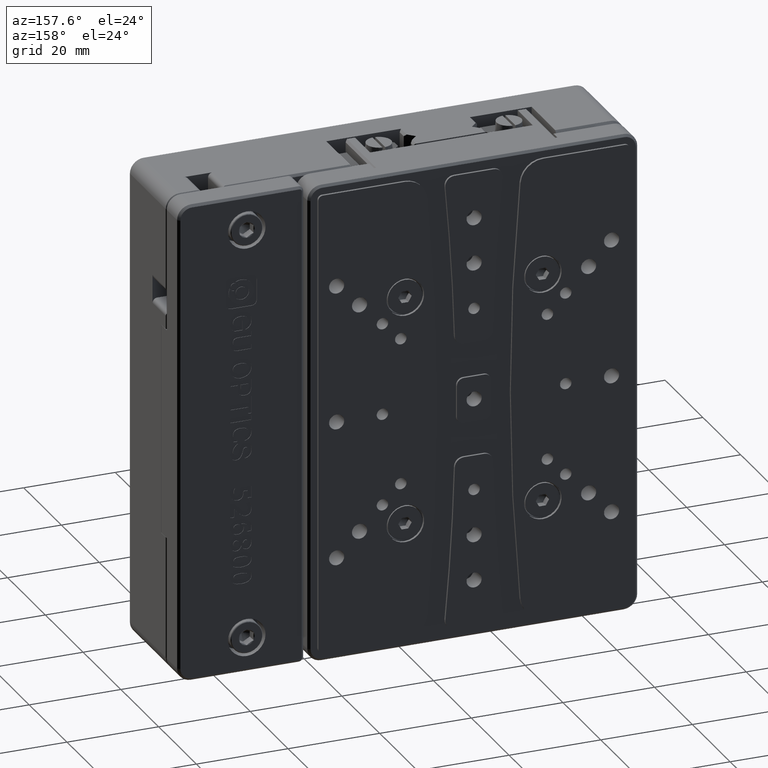
[diagram: clean part render]
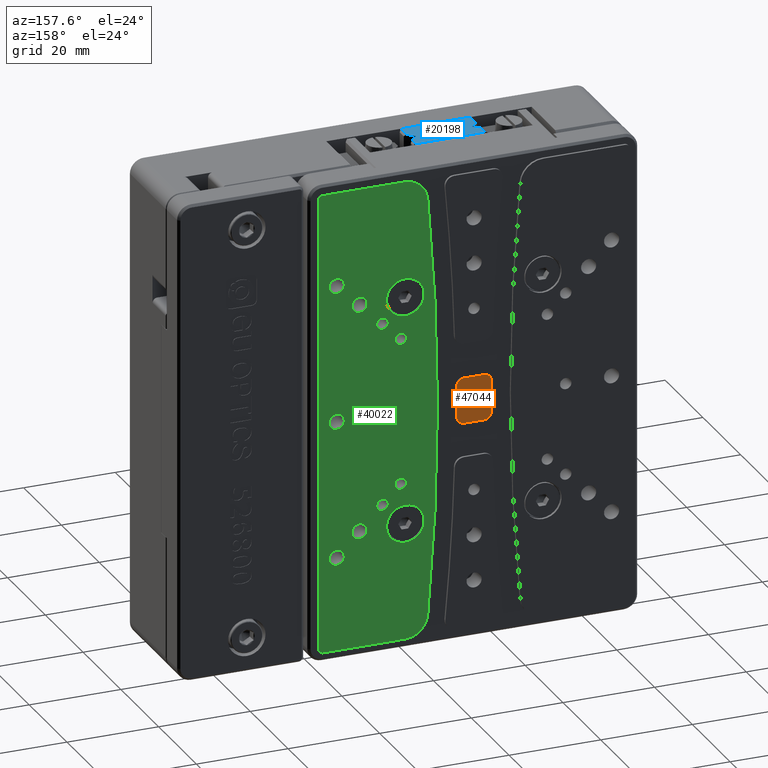
[diagram: same view with three faces highlighted in distinct colors, each labeled with its STEP entity id]
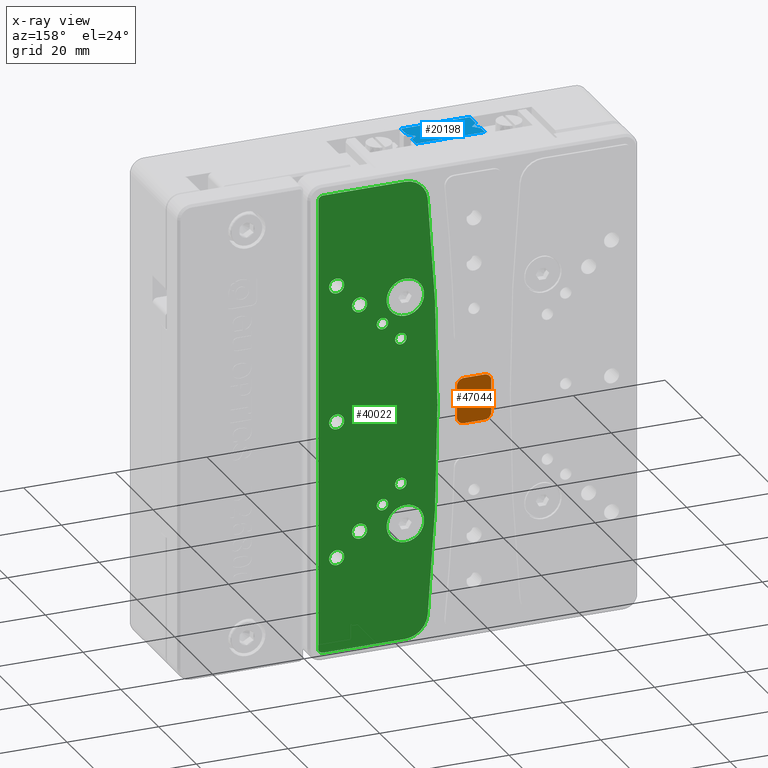
[diagram: x-ray of the same camera — body ghosted, the three highlighted faces saturated]
A machine part, auxiliary view with three faces highlighted in distinct colors.
The next image is the same camera in x-ray (body ghosted, the three faces saturated) — at least one of them is partly hidden behind the body in this view.
Their STEP definitions:

[orange] entity #47044 — the highlighted planar face has unit normal (0, 1, 0).
#831 = EDGE_LOOP ( 'NONE', ( #42785, #41450 ) ) ;
#976 = DIRECTION ( 'NONE',  ( -0.0000000000000000000, -1.000000000000000000, -0.0000000000000000000 ) ) ;
#1041 = EDGE_CURVE ( 'NONE', #34182, #41392, #43091, .T. ) ;
#1652 = CARTESIAN_POINT ( 'NONE',  ( -11.75000000000000000, 7.500000000000000000, -5.000000000000000000 ) ) ;
#2796 = VECTOR ( 'NONE', #21683, 1000.000000000000000 ) ;
#4274 = CIRCLE ( 'NONE', #44759, 1.500000000000000000 ) ;
#4364 = CARTESIAN_POINT ( 'NONE',  ( -16.25000000000000000, 7.500000000000000000, 5.000000000000000000 ) ) ;
#4932 = AXIS2_PLACEMENT_3D ( 'NONE', #23593, #976, #27373 ) ;
#5337 = ORIENTED_EDGE ( 'NONE', *, *, #18552, .T. ) ;
#6198 = CIRCLE ( 'NONE', #47684, 1.500000000000000000 ) ;
#6236 = DIRECTION ( 'NONE',  ( 0.0000000000000000000, 1.000000000000000000, 0.0000000000000000000 ) ) ;
#6574 = EDGE_CURVE ( 'NONE', #37501, #28889, #4274, .T. ) ;
#6836 = LINE ( 'NONE', #32378, #25718 ) ;
#7371 = CARTESIAN_POINT ( 'NONE',  ( -16.25000000000000000, 7.500000000000000000, -3.500000000000000000 ) ) ;
#7720 = ORIENTED_EDGE ( 'NONE', *, *, #48487, .T. ) ;
#8084 = DIRECTION ( 'NONE',  ( 0.0000000000000000000, 1.000000000000000000, 0.0000000000000000000 ) ) ;
#10986 = EDGE_CURVE ( 'NONE', #44526, #27795, #32335, .T. ) ;
#11155 = DIRECTION ( 'NONE',  ( 0.0000000000000000000, 0.0000000000000000000, 1.000000000000000000 ) ) ;
#11985 = VERTEX_POINT ( 'NONE', #4364 ) ;
#13338 = LINE ( 'NONE', #36377, #23372 ) ;
#13592 = EDGE_CURVE ( 'NONE', #42913, #39752, #42297, .T. ) ;
#13858 = DIRECTION ( 'NONE',  ( 0.0000000000000000000, 0.0000000000000000000, 1.000000000000000000 ) ) ;
#14431 = DIRECTION ( 'NONE',  ( 0.0000000000000000000, 0.0000000000000000000, 1.000000000000000000 ) ) ;
#14468 = CIRCLE ( 'NONE', #4932, 1.649999999999999900 ) ;
#14529 = EDGE_CURVE ( 'NONE', #39752, #42913, #14468, .T. ) ;
#17276 = CARTESIAN_POINT ( 'NONE',  ( -17.75000000000000000, 7.500000000000000000, -3.500000000000000000 ) ) ;
#17520 = CARTESIAN_POINT ( 'NONE',  ( -17.75000000000000000, 7.500000000000000000, 3.500000000000000000 ) ) ;
#17798 = CARTESIAN_POINT ( 'NONE',  ( -14.00000000000000000, 7.500000000000000000, 0.0000000000000000000 ) ) ;
#18552 = EDGE_CURVE ( 'NONE', #27795, #11985, #6198, .T. ) ;
#18656 = AXIS2_PLACEMENT_3D ( 'NONE', #23072, #8084, #13858 ) ;
#19771 = DIRECTION ( 'NONE',  ( 0.0000000000000000000, 1.000000000000000000, 0.0000000000000000000 ) ) ;
#21571 = DIRECTION ( 'NONE',  ( 0.0000000000000000000, 0.0000000000000000000, 1.000000000000000000 ) ) ;
#21683 = DIRECTION ( 'NONE',  ( 0.0000000000000000000, 0.0000000000000000000, -1.000000000000000000 ) ) ;
#22334 = FACE_OUTER_BOUND ( 'NONE', #43760, .T. ) ;
#23072 = CARTESIAN_POINT ( 'NONE',  ( -11.75000000000000000, 7.500000000000000000, -3.500000000000000000 ) ) ;
#23372 = VECTOR ( 'NONE', #47461, 1000.000000000000000 ) ;
#23593 = CARTESIAN_POINT ( 'NONE',  ( -14.00000000000000000, 7.500000000000000000, 0.0000000000000000000 ) ) ;
#25718 = VECTOR ( 'NONE', #32544, 1000.000000000000000 ) ;
#27373 = DIRECTION ( 'NONE',  ( 0.0000000000000000000, 0.0000000000000000000, 1.000000000000000000 ) ) ;
#27795 = VERTEX_POINT ( 'NONE', #17520 ) ;
#28812 = CARTESIAN_POINT ( 'NONE',  ( 21.35999999999999900, 7.500000000000000000, -52.51999999999999600 ) ) ;
#28889 = VERTEX_POINT ( 'NONE', #42610 ) ;
#29333 = LINE ( 'NONE', #44319, #2796 ) ;
#30814 = ORIENTED_EDGE ( 'NONE', *, *, #10986, .T. ) ;
#30895 = ORIENTED_EDGE ( 'NONE', *, *, #39242, .T. ) ;
#31211 = DIRECTION ( 'NONE',  ( 0.0000000000000000000, 0.0000000000000000000, 1.000000000000000000 ) ) ;
#31311 = DIRECTION ( 'NONE',  ( 0.0000000000000000000, 1.000000000000000000, 0.0000000000000000000 ) ) ;
#31371 = CARTESIAN_POINT ( 'NONE',  ( -11.75000000000000000, 7.500000000000000000, 3.500000000000000000 ) ) ;
#32119 = ORIENTED_EDGE ( 'NONE', *, *, #43904, .T. ) ;
#32335 = LINE ( 'NONE', #37954, #33577 ) ;
#32378 = CARTESIAN_POINT ( 'NONE',  ( -14.00000000000000000, 7.500000000000000000, 5.000000000000000000 ) ) ;
#32544 = DIRECTION ( 'NONE',  ( 1.000000000000000000, 0.0000000000000000000, 0.0000000000000000000 ) ) ;
#32611 = DIRECTION ( 'NONE',  ( -1.000000000000000000, 0.0000000000000000000, 0.0000000000000000000 ) ) ;
#33577 = VECTOR ( 'NONE', #14431, 1000.000000000000000 ) ;
#33752 = DIRECTION ( 'NONE',  ( 0.0000000000000000000, 1.000000000000000000, 0.0000000000000000000 ) ) ;
#34182 = VERTEX_POINT ( 'NONE', #37088 ) ;
#35913 = FACE_BOUND ( 'NONE', #831, .T. ) ;
#36377 = CARTESIAN_POINT ( 'NONE',  ( -14.00000000000000000, 7.500000000000000000, -5.000000000000000000 ) ) ;
#36737 = CARTESIAN_POINT ( 'NONE',  ( -14.00000000000000000, 7.500000000000000000, 1.649999999999999900 ) ) ;
#37088 = CARTESIAN_POINT ( 'NONE',  ( -10.25000000000000000, 7.500000000000000000, -3.500000000000000000 ) ) ;
#37191 = AXIS2_PLACEMENT_3D ( 'NONE', #7371, #33752, #11155 ) ;
#37501 = VERTEX_POINT ( 'NONE', #39939 ) ;
#37954 = CARTESIAN_POINT ( 'NONE',  ( -17.75000000000000000, 7.500000000000000000, 0.0000000000000000000 ) ) ;
#39242 = EDGE_CURVE ( 'NONE', #47550, #44526, #45082, .T. ) ;
#39752 = VERTEX_POINT ( 'NONE', #36737 ) ;
#39836 = CARTESIAN_POINT ( 'NONE',  ( -16.25000000000000000, 7.500000000000000000, -5.000000000000000000 ) ) ;
#39939 = CARTESIAN_POINT ( 'NONE',  ( -11.75000000000000000, 7.500000000000000000, 5.000000000000000000 ) ) ;
#40485 = CARTESIAN_POINT ( 'NONE',  ( -14.00000000000000000, 7.500000000000000000, -1.649999999999999900 ) ) ;
#41392 = VERTEX_POINT ( 'NONE', #1652 ) ;
#41450 = ORIENTED_EDGE ( 'NONE', *, *, #13592, .T. ) ;
#41544 = ORIENTED_EDGE ( 'NONE', *, *, #6574, .T. ) ;
#42297 = CIRCLE ( 'NONE', #44099, 1.649999999999999900 ) ;
#42414 = CARTESIAN_POINT ( 'NONE',  ( -16.25000000000000000, 7.500000000000000000, 3.500000000000000000 ) ) ;
#42610 = CARTESIAN_POINT ( 'NONE',  ( -10.25000000000000000, 7.500000000000000000, 3.500000000000000000 ) ) ;
#42785 = ORIENTED_EDGE ( 'NONE', *, *, #14529, .T. ) ;
#42913 = VERTEX_POINT ( 'NONE', #40485 ) ;
#43091 = CIRCLE ( 'NONE', #18656, 1.500000000000000000 ) ;
#43557 = AXIS2_PLACEMENT_3D ( 'NONE', #28812, #6236, #32611 ) ;
#43760 = EDGE_LOOP ( 'NONE', ( #30814, #5337, #46304, #41544, #32119, #48874, #7720, #30895 ) ) ;
#43904 = EDGE_CURVE ( 'NONE', #28889, #34182, #29333, .T. ) ;
#44099 = AXIS2_PLACEMENT_3D ( 'NONE', #17798, #44211, #21571 ) ;
#44211 = DIRECTION ( 'NONE',  ( -0.0000000000000000000, -1.000000000000000000, -0.0000000000000000000 ) ) ;
#44319 = CARTESIAN_POINT ( 'NONE',  ( -10.25000000000000000, 7.500000000000000000, 0.0000000000000000000 ) ) ;
#44526 = VERTEX_POINT ( 'NONE', #17276 ) ;
#44759 = AXIS2_PLACEMENT_3D ( 'NONE', #31371, #31311, #31211 ) ;
#45082 = CIRCLE ( 'NONE', #37191, 1.500000000000000000 ) ;
#46200 = DIRECTION ( 'NONE',  ( 0.0000000000000000000, 0.0000000000000000000, 1.000000000000000000 ) ) ;
#46304 = ORIENTED_EDGE ( 'NONE', *, *, #48924, .T. ) ;
#47044 = ADVANCED_FACE ( 'NONE', ( #35913, #22334 ), #47484, .T. ) ;
#47461 = DIRECTION ( 'NONE',  ( -1.000000000000000000, 0.0000000000000000000, 0.0000000000000000000 ) ) ;
#47484 = PLANE ( 'NONE',  #43557 ) ;
#47550 = VERTEX_POINT ( 'NONE', #39836 ) ;
#47684 = AXIS2_PLACEMENT_3D ( 'NONE', #42414, #19771, #46200 ) ;
#48487 = EDGE_CURVE ( 'NONE', #41392, #47550, #13338, .T. ) ;
#48874 = ORIENTED_EDGE ( 'NONE', *, *, #1041, .T. ) ;
#48924 = EDGE_CURVE ( 'NONE', #11985, #37501, #6836, .T. ) ;

[blue] entity #20198 — the highlighted planar face has unit normal (0, 0, 1).
#979 = VECTOR ( 'NONE', #40427, 999.9999999999998900 ) ;
#1088 = ORIENTED_EDGE ( 'NONE', *, *, #6253, .F. ) ;
#1096 = CARTESIAN_POINT ( 'NONE',  ( -6.479999999999999500, -5.000000000000000000, 52.50000000000079600 ) ) ;
#1965 = ORIENTED_EDGE ( 'NONE', *, *, #12147, .F. ) ;
#3205 = EDGE_CURVE ( 'NONE', #28650, #4640, #41179, .T. ) ;
#3525 = CARTESIAN_POINT ( 'NONE',  ( -20.12499999999789700, -8.499999999999349900, 52.50000000000000000 ) ) ;
#3994 = DIRECTION ( 'NONE',  ( -0.0000000000000000000, 1.000000000000000000, -0.0000000000000000000 ) ) ;
#4640 = VERTEX_POINT ( 'NONE', #10025 ) ;
#4852 = VECTOR ( 'NONE', #20782, 1000.000000000000000 ) ;
#4928 = CARTESIAN_POINT ( 'NONE',  ( -21.52000000000000000, -9.000000000000000000, 52.50000000000000000 ) ) ;
#5902 = ORIENTED_EDGE ( 'NONE', *, *, #36050, .F. ) ;
#6135 = VERTEX_POINT ( 'NONE', #3525 ) ;
#6253 = EDGE_CURVE ( 'NONE', #43124, #38918, #32595, .T. ) ;
#7659 = CARTESIAN_POINT ( 'NONE',  ( -21.51999999999905100, -5.000000000000949500, 52.50000000000000000 ) ) ;
#8857 = ORIENTED_EDGE ( 'NONE', *, *, #39062, .F. ) ;
#8865 = DIRECTION ( 'NONE',  ( -0.0000000000000000000, -1.000000000000000000, -0.0000000000000000000 ) ) ;
#9656 = VECTOR ( 'NONE', #24531, 999.9999999999998900 ) ;
#10025 = CARTESIAN_POINT ( 'NONE',  ( -6.479999999998569600, -9.895000000002379900, 52.50000000000059700 ) ) ;
#10523 = DIRECTION ( 'NONE',  ( 1.000000000000000000, -0.0000000000000000000, -0.0000000000000000000 ) ) ;
#10636 = CARTESIAN_POINT ( 'NONE',  ( -14.00000000000000000, -5.000000000000000000, 52.50000000000000000 ) ) ;
#10865 = LINE ( 'NONE', #43340, #9656 ) ;
#11058 = LINE ( 'NONE', #4928, #39952 ) ;
#12147 = EDGE_CURVE ( 'NONE', #26371, #39756, #26477, .T. ) ;
#12208 = FACE_OUTER_BOUND ( 'NONE', #20670, .T. ) ;
#12471 = CARTESIAN_POINT ( 'NONE',  ( -6.479999999999050100, -7.104999999999320100, 52.50000000000000000 ) ) ;
#12557 = VECTOR ( 'NONE', #10523, 1000.000000000000000 ) ;
#13877 = ORIENTED_EDGE ( 'NONE', *, *, #23378, .T. ) ;
#16019 = EDGE_CURVE ( 'NONE', #6135, #24226, #34098, .T. ) ;
#16405 = ORIENTED_EDGE ( 'NONE', *, *, #3205, .F. ) ;
#16419 = VECTOR ( 'NONE', #28739, 1000.000000000000000 ) ;
#16467 = CARTESIAN_POINT ( 'NONE',  ( -20.03462079885000000, -8.590379201146998200, 52.50000000000000000 ) ) ;
#19277 = VERTEX_POINT ( 'NONE', #26865 ) ;
#19875 = VERTEX_POINT ( 'NONE', #12471 ) ;
#20160 = LINE ( 'NONE', #31409, #39073 ) ;
#20198 = ADVANCED_FACE ( 'NONE', ( #12208 ), #39523, .T. ) ;
#20204 = DIRECTION ( 'NONE',  ( -0.7071067811875794100, 0.7071067811855155100, 0.0000000000000000000 ) ) ;
#20668 = DIRECTION ( 'NONE',  ( 1.000000000000000000, 0.0000000000000000000, 0.0000000000000000000 ) ) ;
#20670 = EDGE_LOOP ( 'NONE', ( #38645, #21475, #8857, #44603, #1965, #13877, #16405, #5902, #30072, #1088 ) ) ;
#20782 = DIRECTION ( 'NONE',  ( 0.0000000000000000000, 1.000000000000000000, 0.0000000000000000000 ) ) ;
#21475 = ORIENTED_EDGE ( 'NONE', *, *, #16019, .F. ) ;
#22048 = CARTESIAN_POINT ( 'NONE',  ( -21.52000000000000000, -13.00000000000000000, 52.50000000000000000 ) ) ;
#23378 = EDGE_CURVE ( 'NONE', #26371, #4640, #23730, .T. ) ;
#23730 = LINE ( 'NONE', #47237, #4852 ) ;
#24039 = VECTOR ( 'NONE', #20204, 1000.000000000000100 ) ;
#24226 = VERTEX_POINT ( 'NONE', #24372 ) ;
#24372 = CARTESIAN_POINT ( 'NONE',  ( -21.52000000000035100, -7.105000000001009400, 52.50000000000000000 ) ) ;
#24531 = DIRECTION ( 'NONE',  ( 0.7071067811870630500, 0.7071067811860321000, 0.0000000000000000000 ) ) ;
#26371 = VERTEX_POINT ( 'NONE', #28698 ) ;
#26477 = LINE ( 'NONE', #27759, #16419 ) ;
#26586 = CARTESIAN_POINT ( 'NONE',  ( -21.52000000000000000, -9.000000000000000000, 52.50000000000000000 ) ) ;
#26865 = CARTESIAN_POINT ( 'NONE',  ( -21.52000000000000000, -9.895000000000729700, 52.50000000000000000 ) ) ;
#27070 = EDGE_CURVE ( 'NONE', #38918, #19875, #20160, .T. ) ;
#27759 = CARTESIAN_POINT ( 'NONE',  ( -14.00000000000000000, -13.00000000000000000, 52.50000000000000000 ) ) ;
#28111 = CARTESIAN_POINT ( 'NONE',  ( -21.82080000000000200, -13.16000000000000000, 52.50000000000000000 ) ) ;
#28650 = VERTEX_POINT ( 'NONE', #29420 ) ;
#28698 = CARTESIAN_POINT ( 'NONE',  ( -6.479999999998779200, -13.00000000000000000, 52.50000000000000000 ) ) ;
#28739 = DIRECTION ( 'NONE',  ( -1.000000000000000000, -0.0000000000000000000, -0.0000000000000000000 ) ) ;
#29387 = AXIS2_PLACEMENT_3D ( 'NONE', #28111, #43334, #20668 ) ;
#29420 = CARTESIAN_POINT ( 'NONE',  ( -7.875000000000000000, -8.500000000000000000, 52.50000000000000000 ) ) ;
#29959 = CARTESIAN_POINT ( 'NONE',  ( -5.909620798853000100, -6.534620798853000100, 52.50000000000000000 ) ) ;
#30072 = ORIENTED_EDGE ( 'NONE', *, *, #27070, .F. ) ;
#31282 = DIRECTION ( 'NONE',  ( -0.0000000000000000000, 1.000000000000000000, -0.0000000000000000000 ) ) ;
#31409 = CARTESIAN_POINT ( 'NONE',  ( -6.479999999999999500, -9.000000000000000000, 52.50000000000000000 ) ) ;
#32595 = LINE ( 'NONE', #10636, #12557 ) ;
#33061 = VECTOR ( 'NONE', #3994, 1000.000000000000000 ) ;
#33111 = EDGE_CURVE ( 'NONE', #24226, #43124, #43101, .T. ) ;
#34098 = LINE ( 'NONE', #16467, #24039 ) ;
#35666 = EDGE_CURVE ( 'NONE', #39756, #19277, #11058, .T. ) ;
#36050 = EDGE_CURVE ( 'NONE', #19875, #28650, #47021, .T. ) ;
#36960 = VECTOR ( 'NONE', #41389, 1000.000000000000000 ) ;
#38645 = ORIENTED_EDGE ( 'NONE', *, *, #33111, .F. ) ;
#38918 = VERTEX_POINT ( 'NONE', #1096 ) ;
#39062 = EDGE_CURVE ( 'NONE', #19277, #6135, #10865, .T. ) ;
#39073 = VECTOR ( 'NONE', #8865, 1000.000000000000000 ) ;
#39523 = PLANE ( 'NONE',  #29387 ) ;
#39756 = VERTEX_POINT ( 'NONE', #22048 ) ;
#39952 = VECTOR ( 'NONE', #31282, 1000.000000000000000 ) ;
#40427 = DIRECTION ( 'NONE',  ( 0.7071067811860309900, -0.7071067811870641600, 0.0000000000000000000 ) ) ;
#41179 = LINE ( 'NONE', #42507, #979 ) ;
#41389 = DIRECTION ( 'NONE',  ( -0.7071067811865470200, -0.7071067811865480200, 0.0000000000000000000 ) ) ;
#42507 = CARTESIAN_POINT ( 'NONE',  ( -7.965379201146999900, -8.409620798853000100, 52.50000000000000000 ) ) ;
#43101 = LINE ( 'NONE', #26586, #33061 ) ;
#43124 = VERTEX_POINT ( 'NONE', #7659 ) ;
#43334 = DIRECTION ( 'NONE',  ( 0.0000000000000000000, 0.0000000000000000000, 1.000000000000000000 ) ) ;
#43340 = CARTESIAN_POINT ( 'NONE',  ( -22.09037920115000000, -10.46537920115000000, 52.50000000000000000 ) ) ;
#44603 = ORIENTED_EDGE ( 'NONE', *, *, #35666, .F. ) ;
#47021 = LINE ( 'NONE', #29959, #36960 ) ;
#47237 = CARTESIAN_POINT ( 'NONE',  ( -6.479999999998909700, -11.44750000000049900, 52.50000000000110100 ) ) ;

[green] entity #40022 — the highlighted planar face has unit normal (0, 1, 0).
#195 = CARTESIAN_POINT ( 'NONE',  ( 1.000000000000000400, 7.500000000000000000, -29.10000000000000100 ) ) ;
#231 = DIRECTION ( 'NONE',  ( 0.0000000000000000000, 0.0000000000000000000, 1.000000000000000000 ) ) ;
#452 = DIRECTION ( 'NONE',  ( -0.0000000000000000000, -1.000000000000000000, -0.0000000000000000000 ) ) ;
#511 = EDGE_LOOP ( 'NONE', ( #19876, #43658 ) ) ;
#535 = VERTEX_POINT ( 'NONE', #8993 ) ;
#709 = FACE_BOUND ( 'NONE', #2089, .T. ) ;
#712 = CIRCLE ( 'NONE', #7800, 4.099999999999999600 ) ;
#826 = DIRECTION ( 'NONE',  ( 0.0000000000000000000, 1.000000000000000000, 0.0000000000000000000 ) ) ;
#1335 = VERTEX_POINT ( 'NONE', #33548 ) ;
#1877 = FACE_BOUND ( 'NONE', #13746, .T. ) ;
#2089 = EDGE_LOOP ( 'NONE', ( #37540, #6875 ) ) ;
#2205 = CARTESIAN_POINT ( 'NONE',  ( 494.0000000000000000, 7.500000000000000000, 0.0000000000000000000 ) ) ;
#2350 = CARTESIAN_POINT ( 'NONE',  ( 11.00000000000000000, 7.500000000000000000, -25.00000000000000000 ) ) ;
#2886 = DIRECTION ( 'NONE',  ( 0.0000000000000000000, 1.000000000000000000, 0.0000000000000000000 ) ) ;
#3633 = DIRECTION ( 'NONE',  ( 0.0000000000000000000, 0.0000000000000000000, 1.000000000000000000 ) ) ;
#3766 = VERTEX_POINT ( 'NONE', #43192 ) ;
#3828 = AXIS2_PLACEMENT_3D ( 'NONE', #9068, #35451, #12868 ) ;
#4065 = CARTESIAN_POINT ( 'NONE',  ( 6.000000000000000000, 7.500000000000000000, -20.00000000000000000 ) ) ;
#4117 = EDGE_CURVE ( 'NONE', #8120, #32801, #15678, .T. ) ;
#4152 = DIRECTION ( 'NONE',  ( 0.0000000000000000000, 0.0000000000000000000, -1.000000000000000000 ) ) ;
#4222 = ORIENTED_EDGE ( 'NONE', *, *, #18139, .T. ) ;
#4231 = CIRCLE ( 'NONE', #32090, 4.099999999999999600 ) ;
#4313 = CARTESIAN_POINT ( 'NONE',  ( 1.095597503939000000, 7.500000000000000000, -45.50000000000000000 ) ) ;
#4403 = ORIENTED_EDGE ( 'NONE', *, *, #10109, .T. ) ;
#4737 = DIRECTION ( 'NONE',  ( -0.0000000000000000000, -1.000000000000000000, -0.0000000000000000000 ) ) ;
#4830 = CARTESIAN_POINT ( 'NONE',  ( 16.00000000000000000, 7.500000000000000000, -30.00000000000000000 ) ) ;
#5450 = ORIENTED_EDGE ( 'NONE', *, *, #27869, .F. ) ;
#6014 = DIRECTION ( 'NONE',  ( 0.0000000000000000000, 0.0000000000000000000, 1.000000000000000000 ) ) ;
#6075 = CARTESIAN_POINT ( 'NONE',  ( 16.00000000000000000, 7.500000000000000000, -1.649999999999999900 ) ) ;
#6149 = DIRECTION ( 'NONE',  ( 0.0000000000000000000, 0.0000000000000000000, 1.000000000000000000 ) ) ;
#6414 = CARTESIAN_POINT ( 'NONE',  ( -3.883234844506894500, 7.500000000000000000, -45.95959595959799800 ) ) ;
#6446 = CARTESIAN_POINT ( 'NONE',  ( 11.00000000000000000, 7.500000000000000000, 23.35000000000000100 ) ) ;
#6493 = CARTESIAN_POINT ( 'NONE',  ( -3.883234844505884600, 7.500000000000000000, 45.95959595959799800 ) ) ;
#6875 = ORIENTED_EDGE ( 'NONE', *, *, #44235, .T. ) ;
#7333 = ORIENTED_EDGE ( 'NONE', *, *, #33265, .T. ) ;
#7428 = LINE ( 'NONE', #11569, #16225 ) ;
#7643 = CIRCLE ( 'NONE', #14176, 1.649999999999998600 ) ;
#7664 = AXIS2_PLACEMENT_3D ( 'NONE', #48836, #26218, #3633 ) ;
#7800 = AXIS2_PLACEMENT_3D ( 'NONE', #18712, #45133, #22500 ) ;
#7854 = DIRECTION ( 'NONE',  ( 0.0000000000000000000, 0.0000000000000000000, 1.000000000000000000 ) ) ;
#7925 = CARTESIAN_POINT ( 'NONE',  ( 2.000000000000000000, 7.500000000000000000, -16.00000000000000000 ) ) ;
#7986 = VERTEX_POINT ( 'NONE', #41295 ) ;
#8012 = AXIS2_PLACEMENT_3D ( 'NONE', #23041, #452, #26832 ) ;
#8026 = CIRCLE ( 'NONE', #28366, 1.250000000000001100 ) ;
#8096 = AXIS2_PLACEMENT_3D ( 'NONE', #38071, #15510, #41940 ) ;
#8120 = VERTEX_POINT ( 'NONE', #37878 ) ;
#8121 = DIRECTION ( 'NONE',  ( 0.0000000000000000000, 0.0000000000000000000, 1.000000000000000000 ) ) ;
#8524 = CIRCLE ( 'NONE', #43983, 1.250000000000001100 ) ;
#8632 = DIRECTION ( 'NONE',  ( 0.0000000000000000000, 0.0000000000000000000, 1.000000000000000000 ) ) ;
#8806 = EDGE_LOOP ( 'NONE', ( #4403, #4222 ) ) ;
#8993 = CARTESIAN_POINT ( 'NONE',  ( 11.00000000000000000, 7.500000000000000000, 26.64999999999999900 ) ) ;
#9068 = CARTESIAN_POINT ( 'NONE',  ( 16.00000000000000000, 7.500000000000000000, -30.00000000000000000 ) ) ;
#9163 = AXIS2_PLACEMENT_3D ( 'NONE', #27319, #4737, #31080 ) ;
#9260 = AXIS2_PLACEMENT_3D ( 'NONE', #30784, #40889, #38576 ) ;
#9262 = ORIENTED_EDGE ( 'NONE', *, *, #47551, .T. ) ;
#9478 = ORIENTED_EDGE ( 'NONE', *, *, #43135, .T. ) ;
#9569 = FACE_BOUND ( 'NONE', #40242, .T. ) ;
#9778 = DIRECTION ( 'NONE',  ( 0.0000000000000000000, 1.000000000000000000, 0.0000000000000000000 ) ) ;
#10069 = VERTEX_POINT ( 'NONE', #18257 ) ;
#10095 = CARTESIAN_POINT ( 'NONE',  ( 11.00000000000000000, 7.500000000000000000, 25.00000000000000000 ) ) ;
#10109 = EDGE_CURVE ( 'NONE', #14264, #45202, #41360, .T. ) ;
#10116 = CIRCLE ( 'NONE', #8012, 1.649999999999999900 ) ;
#10449 = ORIENTED_EDGE ( 'NONE', *, *, #29330, .T. ) ;
#10622 = CARTESIAN_POINT ( 'NONE',  ( 16.00000000000000000, 7.500000000000000000, 1.649999999999999900 ) ) ;
#10627 = CARTESIAN_POINT ( 'NONE',  ( 16.00000000000000000, 7.500000000000000000, 30.00000000000000000 ) ) ;
#10773 = FACE_BOUND ( 'NONE', #32749, .T. ) ;
#11111 = CIRCLE ( 'NONE', #7664, 1.250000000000000000 ) ;
#11173 = DIRECTION ( 'NONE',  ( -0.0000000000000000000, -1.000000000000000000, -0.0000000000000000000 ) ) ;
#11546 = CIRCLE ( 'NONE', #26591, 4.999999999999997300 ) ;
#11557 = VERTEX_POINT ( 'NONE', #35384 ) ;
#11569 = CARTESIAN_POINT ( 'NONE',  ( 20.00000000000000000, 7.500000000000000000, 3.469446951953615000E-015 ) ) ;
#11640 = CIRCLE ( 'NONE', #9163, 1.250000000000001100 ) ;
#11707 = VERTEX_POINT ( 'NONE', #45115 ) ;
#11714 = DIRECTION ( 'NONE',  ( 0.0000000000000000000, 0.0000000000000000000, 1.000000000000000000 ) ) ;
#11734 = CARTESIAN_POINT ( 'NONE',  ( 1.000000000000000000, 7.500000000000000000, 25.00000000000000000 ) ) ;
#11848 = CIRCLE ( 'NONE', #31296, 1.250000000000001100 ) ;
#12033 = DIRECTION ( 'NONE',  ( -0.0000000000000000000, -1.000000000000000000, -0.0000000000000000000 ) ) ;
#12096 = ORIENTED_EDGE ( 'NONE', *, *, #4117, .T. ) ;
#12103 = EDGE_LOOP ( 'NONE', ( #22930, #45308 ) ) ;
#12584 = DIRECTION ( 'NONE',  ( -0.0000000000000000000, -1.000000000000000000, -0.0000000000000000000 ) ) ;
#12868 = DIRECTION ( 'NONE',  ( 0.0000000000000000000, 0.0000000000000000000, 1.000000000000000000 ) ) ;
#13071 = AXIS2_PLACEMENT_3D ( 'NONE', #23430, #826, #27217 ) ;
#13479 = AXIS2_PLACEMENT_3D ( 'NONE', #35170, #12584, #38938 ) ;
#13563 = DIRECTION ( 'NONE',  ( -0.0000000000000000000, -1.000000000000000000, -0.0000000000000000000 ) ) ;
#13746 = EDGE_LOOP ( 'NONE', ( #24898, #10449 ) ) ;
#13886 = DIRECTION ( 'NONE',  ( 0.0000000000000000000, 0.0000000000000000000, 1.000000000000000000 ) ) ;
#13983 = CIRCLE ( 'NONE', #8096, 1.649999999999998600 ) ;
#14176 = AXIS2_PLACEMENT_3D ( 'NONE', #45074, #22447, #48868 ) ;
#14217 = VERTEX_POINT ( 'NONE', #28876 ) ;
#14264 = VERTEX_POINT ( 'NONE', #36805 ) ;
#14306 = CARTESIAN_POINT ( 'NONE',  ( 2.000000000000000000, 7.500000000000000000, 17.25000000000000000 ) ) ;
#14330 = VERTEX_POINT ( 'NONE', #10622 ) ;
#14404 = DIRECTION ( 'NONE',  ( 0.0000000000000000000, 0.0000000000000000000, 1.000000000000000000 ) ) ;
#15035 = DIRECTION ( 'NONE',  ( 0.0000000000000000000, 1.000000000000000000, 0.0000000000000000000 ) ) ;
#15229 = CARTESIAN_POINT ( 'NONE',  ( 16.00000000000000000, 7.500000000000000000, 30.00000000000000000 ) ) ;
#15275 = EDGE_CURVE ( 'NONE', #25332, #25243, #45090, .T. ) ;
#15510 = DIRECTION ( 'NONE',  ( -0.0000000000000000000, -1.000000000000000000, -0.0000000000000000000 ) ) ;
#15520 = CIRCLE ( 'NONE', #26030, 4.099999999999999600 ) ;
#15521 = DIRECTION ( 'NONE',  ( 0.0000000000000000000, 0.0000000000000000000, 1.000000000000000000 ) ) ;
#15527 = CIRCLE ( 'NONE', #33757, 1.000000000000000900 ) ;
#15678 = CIRCLE ( 'NONE', #9260, 1.250000000000000000 ) ;
#16198 = ORIENTED_EDGE ( 'NONE', *, *, #29990, .T. ) ;
#16225 = VECTOR ( 'NONE', #4152, 1000.000000000000000 ) ;
#16415 = VERTEX_POINT ( 'NONE', #17657 ) ;
#17046 = CIRCLE ( 'NONE', #41433, 1.649999999999998600 ) ;
#17064 = CIRCLE ( 'NONE', #44419, 1.649999999999998600 ) ;
#17219 = ORIENTED_EDGE ( 'NONE', *, *, #47911, .T. ) ;
#17651 = EDGE_CURVE ( 'NONE', #40275, #20799, #27429, .T. ) ;
#17657 = CARTESIAN_POINT ( 'NONE',  ( 1.095597503939000000, 7.500000000000000000, 50.50000000000000000 ) ) ;
#18139 = EDGE_CURVE ( 'NONE', #45202, #14264, #8026, .T. ) ;
#18188 = ORIENTED_EDGE ( 'NONE', *, *, #34213, .T. ) ;
#18257 = CARTESIAN_POINT ( 'NONE',  ( 16.00000000000000000, 7.500000000000000000, -31.64999999999999900 ) ) ;
#18418 = FACE_OUTER_BOUND ( 'NONE', #38230, .T. ) ;
#18434 = EDGE_CURVE ( 'NONE', #44491, #20793, #7428, .T. ) ;
#18712 = CARTESIAN_POINT ( 'NONE',  ( 1.000000000000000000, 7.500000000000000000, -25.00000000000000000 ) ) ;
#19002 = DIRECTION ( 'NONE',  ( 0.0000000000000000000, 0.0000000000000000000, 1.000000000000000000 ) ) ;
#19084 = AXIS2_PLACEMENT_3D ( 'NONE', #4830, #31181, #8632 ) ;
#19213 = DIRECTION ( 'NONE',  ( -0.0000000000000000000, -1.000000000000000000, -0.0000000000000000000 ) ) ;
#19299 = VERTEX_POINT ( 'NONE', #23071 ) ;
#19518 = LINE ( 'NONE', #36235, #28358 ) ;
#19549 = CIRCLE ( 'NONE', #13479, 1.249999999999999300 ) ;
#19584 = FACE_BOUND ( 'NONE', #8806, .T. ) ;
#19711 = ORIENTED_EDGE ( 'NONE', *, *, #21024, .T. ) ;
#19876 = ORIENTED_EDGE ( 'NONE', *, *, #15275, .T. ) ;
#20043 = EDGE_CURVE ( 'NONE', #25243, #25332, #11640, .T. ) ;
#20067 = ORIENTED_EDGE ( 'NONE', *, *, #39534, .T. ) ;
#20274 = CARTESIAN_POINT ( 'NONE',  ( 6.000000000000000000, 7.500000000000000000, -1.250000000000000000 ) ) ;
#20523 = AXIS2_PLACEMENT_3D ( 'NONE', #25503, #2886, #29257 ) ;
#20716 = CARTESIAN_POINT ( 'NONE',  ( 20.00000000000000000, 7.500000000000000000, 49.50000000000000000 ) ) ;
#20727 = FACE_BOUND ( 'NONE', #27563, .T. ) ;
#20793 = VERTEX_POINT ( 'NONE', #36814 ) ;
#20799 = VERTEX_POINT ( 'NONE', #44421 ) ;
#21024 = EDGE_CURVE ( 'NONE', #20799, #44568, #11546, .T. ) ;
#21183 = ORIENTED_EDGE ( 'NONE', *, *, #29297, .T. ) ;
#21474 = DIRECTION ( 'NONE',  ( -0.0000000000000000000, -1.000000000000000000, -0.0000000000000000000 ) ) ;
#21517 = AXIS2_PLACEMENT_3D ( 'NONE', #46601, #11173, #23174 ) ;
#21915 = CIRCLE ( 'NONE', #13071, 4.099999999999999600 ) ;
#22020 = EDGE_CURVE ( 'NONE', #11557, #7986, #8524, .T. ) ;
#22211 = DIRECTION ( 'NONE',  ( 0.0000000000000000000, 1.000000000000000000, 0.0000000000000000000 ) ) ;
#22447 = DIRECTION ( 'NONE',  ( -0.0000000000000000000, -1.000000000000000000, -0.0000000000000000000 ) ) ;
#22500 = DIRECTION ( 'NONE',  ( 0.0000000000000000000, 0.0000000000000000000, 1.000000000000000000 ) ) ;
#22804 = DIRECTION ( 'NONE',  ( 0.0000000000000000000, 1.000000000000000000, 0.0000000000000000000 ) ) ;
#22895 = EDGE_CURVE ( 'NONE', #37034, #14217, #15520, .T. ) ;
#22930 = ORIENTED_EDGE ( 'NONE', *, *, #22020, .T. ) ;
#23027 = AXIS2_PLACEMENT_3D ( 'NONE', #7925, #34315, #11714 ) ;
#23041 = CARTESIAN_POINT ( 'NONE',  ( 16.00000000000000000, 7.500000000000000000, 0.0000000000000000000 ) ) ;
#23071 = CARTESIAN_POINT ( 'NONE',  ( 16.00000000000000000, 7.500000000000000000, 31.64999999999999900 ) ) ;
#23174 = DIRECTION ( 'NONE',  ( 0.0000000000000000000, 0.0000000000000000000, 1.000000000000000000 ) ) ;
#23287 = AXIS2_PLACEMENT_3D ( 'NONE', #44123, #21474, #47927 ) ;
#23430 = CARTESIAN_POINT ( 'NONE',  ( 1.000000000000000000, 7.500000000000000000, -25.00000000000000000 ) ) ;
#23575 = CARTESIAN_POINT ( 'NONE',  ( 11.00000000000000000, 7.500000000000000000, -26.64999999999999900 ) ) ;
#23607 = CIRCLE ( 'NONE', #25121, 1.649999999999998600 ) ;
#23702 = EDGE_CURVE ( 'NONE', #25971, #38489, #21915, .T. ) ;
#23984 = AXIS2_PLACEMENT_3D ( 'NONE', #2205, #28590, #6014 ) ;
#24138 = EDGE_CURVE ( 'NONE', #14330, #45918, #10116, .T. ) ;
#24236 = ORIENTED_EDGE ( 'NONE', *, *, #44155, .T. ) ;
#24397 = EDGE_CURVE ( 'NONE', #16415, #36986, #19518, .T. ) ;
#24602 = CARTESIAN_POINT ( 'NONE',  ( 2.000000000000000000, 7.500000000000000000, -17.25000000000000000 ) ) ;
#24898 = ORIENTED_EDGE ( 'NONE', *, *, #24138, .T. ) ;
#25121 = AXIS2_PLACEMENT_3D ( 'NONE', #10627, #36975, #14404 ) ;
#25175 = CARTESIAN_POINT ( 'NONE',  ( 10.04779875196883900, 7.500000000000000000, -50.50000000000000000 ) ) ;
#25243 = VERTEX_POINT ( 'NONE', #46710 ) ;
#25332 = VERTEX_POINT ( 'NONE', #14306 ) ;
#25503 = CARTESIAN_POINT ( 'NONE',  ( 21.35999999999999900, 7.500000000000000000, -52.51999999999999600 ) ) ;
#25819 = CIRCLE ( 'NONE', #19084, 1.649999999999998600 ) ;
#25912 = EDGE_CURVE ( 'NONE', #3766, #19299, #23607, .T. ) ;
#25971 = VERTEX_POINT ( 'NONE', #195 ) ;
#26030 = AXIS2_PLACEMENT_3D ( 'NONE', #11734, #38079, #15521 ) ;
#26119 = VERTEX_POINT ( 'NONE', #24602 ) ;
#26205 = VERTEX_POINT ( 'NONE', #6446 ) ;
#26218 = DIRECTION ( 'NONE',  ( -0.0000000000000000000, -1.000000000000000000, -0.0000000000000000000 ) ) ;
#26385 = EDGE_CURVE ( 'NONE', #535, #26205, #17064, .T. ) ;
#26591 = AXIS2_PLACEMENT_3D ( 'NONE', #4313, #30684, #8121 ) ;
#26832 = DIRECTION ( 'NONE',  ( 0.0000000000000000000, 0.0000000000000000000, 1.000000000000000000 ) ) ;
#27217 = DIRECTION ( 'NONE',  ( 0.0000000000000000000, 0.0000000000000000000, 1.000000000000000000 ) ) ;
#27309 = EDGE_CURVE ( 'NONE', #38489, #25971, #712, .T. ) ;
#27319 = CARTESIAN_POINT ( 'NONE',  ( 2.000000000000000000, 7.500000000000000000, 16.00000000000000000 ) ) ;
#27429 = LINE ( 'NONE', #25175, #46343 ) ;
#27563 = EDGE_LOOP ( 'NONE', ( #32567, #16198 ) ) ;
#27869 = EDGE_CURVE ( 'NONE', #14217, #37034, #4231, .T. ) ;
#27994 = EDGE_CURVE ( 'NONE', #26119, #39389, #19549, .T. ) ;
#28358 = VECTOR ( 'NONE', #32602, 1000.000000000000000 ) ;
#28361 = ORIENTED_EDGE ( 'NONE', *, *, #17651, .T. ) ;
#28366 = AXIS2_PLACEMENT_3D ( 'NONE', #36149, #13563, #39951 ) ;
#28420 = FACE_BOUND ( 'NONE', #37951, .T. ) ;
#28590 = DIRECTION ( 'NONE',  ( 0.0000000000000000000, 1.000000000000000000, 0.0000000000000000000 ) ) ;
#28725 = DIRECTION ( 'NONE',  ( -0.0000000000000000000, -1.000000000000000000, -0.0000000000000000000 ) ) ;
#28876 = CARTESIAN_POINT ( 'NONE',  ( 1.000000000000000400, 7.500000000000000000, 20.90000000000000200 ) ) ;
#28940 = DIRECTION ( 'NONE',  ( -1.000000000000000000, 0.0000000000000000000, 0.0000000000000000000 ) ) ;
#29257 = DIRECTION ( 'NONE',  ( -1.000000000000000000, 0.0000000000000000000, 0.0000000000000000000 ) ) ;
#29297 = EDGE_CURVE ( 'NONE', #39389, #26119, #41935, .T. ) ;
#29330 = EDGE_CURVE ( 'NONE', #45918, #14330, #31834, .T. ) ;
#29469 = EDGE_LOOP ( 'NONE', ( #9478, #40619 ) ) ;
#29636 = FACE_BOUND ( 'NONE', #37090, .T. ) ;
#29990 = EDGE_CURVE ( 'NONE', #37789, #11707, #17046, .T. ) ;
#30411 = DIRECTION ( 'NONE',  ( -0.0000000000000000000, -1.000000000000000000, -0.0000000000000000000 ) ) ;
#30684 = DIRECTION ( 'NONE',  ( 0.0000000000000000000, 1.000000000000000000, 0.0000000000000000000 ) ) ;
#30784 = CARTESIAN_POINT ( 'NONE',  ( 6.000000000000000000, 7.500000000000000000, 0.0000000000000000000 ) ) ;
#31080 = DIRECTION ( 'NONE',  ( 0.0000000000000000000, 0.0000000000000000000, 1.000000000000000000 ) ) ;
#31181 = DIRECTION ( 'NONE',  ( -0.0000000000000000000, -1.000000000000000000, -0.0000000000000000000 ) ) ;
#31296 = AXIS2_PLACEMENT_3D ( 'NONE', #41857, #19213, #45629 ) ;
#31662 = CARTESIAN_POINT ( 'NONE',  ( 19.00000000000000000, 7.500000000000000000, -50.50000000000000000 ) ) ;
#31834 = CIRCLE ( 'NONE', #33171, 1.649999999999999900 ) ;
#32090 = AXIS2_PLACEMENT_3D ( 'NONE', #45452, #22804, #231 ) ;
#32341 = CARTESIAN_POINT ( 'NONE',  ( 19.00000000000000000, 7.500000000000000000, -49.50000000000000000 ) ) ;
#32567 = ORIENTED_EDGE ( 'NONE', *, *, #46679, .T. ) ;
#32602 = DIRECTION ( 'NONE',  ( 1.000000000000000000, 0.0000000000000000000, 0.0000000000000000000 ) ) ;
#32749 = EDGE_LOOP ( 'NONE', ( #17219, #7333 ) ) ;
#32801 = VERTEX_POINT ( 'NONE', #20274 ) ;
#32906 = PLANE ( 'NONE',  #20523 ) ;
#33171 = AXIS2_PLACEMENT_3D ( 'NONE', #34633, #12033, #38389 ) ;
#33265 = EDGE_CURVE ( 'NONE', #10069, #1335, #43657, .T. ) ;
#33548 = CARTESIAN_POINT ( 'NONE',  ( 16.00000000000000000, 7.500000000000000000, -28.35000000000000100 ) ) ;
#33757 = AXIS2_PLACEMENT_3D ( 'NONE', #32341, #9778, #36151 ) ;
#34213 = EDGE_CURVE ( 'NONE', #32801, #8120, #11111, .T. ) ;
#34315 = DIRECTION ( 'NONE',  ( -0.0000000000000000000, -1.000000000000000000, -0.0000000000000000000 ) ) ;
#34546 = CARTESIAN_POINT ( 'NONE',  ( 2.000000000000000000, 7.500000000000000000, -14.75000000000000200 ) ) ;
#34633 = CARTESIAN_POINT ( 'NONE',  ( 16.00000000000000000, 7.500000000000000000, 0.0000000000000000000 ) ) ;
#35170 = CARTESIAN_POINT ( 'NONE',  ( 2.000000000000000000, 7.500000000000000000, -16.00000000000000000 ) ) ;
#35384 = CARTESIAN_POINT ( 'NONE',  ( 6.000000000000000000, 7.500000000000000000, -18.75000000000000000 ) ) ;
#35451 = DIRECTION ( 'NONE',  ( -0.0000000000000000000, -1.000000000000000000, -0.0000000000000000000 ) ) ;
#36022 = CARTESIAN_POINT ( 'NONE',  ( 1.000000000000000000, 7.500000000000000000, -20.90000000000000200 ) ) ;
#36149 = CARTESIAN_POINT ( 'NONE',  ( 6.000000000000000000, 7.500000000000000000, 20.00000000000000000 ) ) ;
#36151 = DIRECTION ( 'NONE',  ( 0.0000000000000000000, 0.0000000000000000000, 1.000000000000000000 ) ) ;
#36235 = CARTESIAN_POINT ( 'NONE',  ( 10.04779875196883900, 7.500000000000000000, 50.50000000000000000 ) ) ;
#36380 = CIRCLE ( 'NONE', #46967, 1.000000000000000900 ) ;
#36451 = DIRECTION ( 'NONE',  ( -0.0000000000000000000, -1.000000000000000000, -0.0000000000000000000 ) ) ;
#36526 = CARTESIAN_POINT ( 'NONE',  ( 19.00000000000000000, 7.500000000000000000, 50.50000000000000000 ) ) ;
#36805 = CARTESIAN_POINT ( 'NONE',  ( 6.000000000000000000, 7.500000000000000000, 21.25000000000000000 ) ) ;
#36814 = CARTESIAN_POINT ( 'NONE',  ( 20.00000000000000000, 7.500000000000000000, -49.50000000000000000 ) ) ;
#36975 = DIRECTION ( 'NONE',  ( -0.0000000000000000000, -1.000000000000000000, -0.0000000000000000000 ) ) ;
#36986 = VERTEX_POINT ( 'NONE', #36526 ) ;
#37034 = VERTEX_POINT ( 'NONE', #44131 ) ;
#37090 = EDGE_LOOP ( 'NONE', ( #12096, #18188 ) ) ;
#37100 = CIRCLE ( 'NONE', #38032, 1.649999999999998600 ) ;
#37540 = ORIENTED_EDGE ( 'NONE', *, *, #26385, .T. ) ;
#37603 = CARTESIAN_POINT ( 'NONE',  ( 19.00000000000000000, 7.500000000000000000, 49.50000000000000000 ) ) ;
#37789 = VERTEX_POINT ( 'NONE', #23575 ) ;
#37843 = EDGE_LOOP ( 'NONE', ( #43395, #46984 ) ) ;
#37878 = CARTESIAN_POINT ( 'NONE',  ( 6.000000000000000000, 7.500000000000000000, 1.250000000000000000 ) ) ;
#37951 = EDGE_LOOP ( 'NONE', ( #38038, #5450 ) ) ;
#38032 = AXIS2_PLACEMENT_3D ( 'NONE', #15229, #41635, #19002 ) ;
#38038 = ORIENTED_EDGE ( 'NONE', *, *, #22895, .F. ) ;
#38071 = CARTESIAN_POINT ( 'NONE',  ( 11.00000000000000000, 7.500000000000000000, 25.00000000000000000 ) ) ;
#38079 = DIRECTION ( 'NONE',  ( 0.0000000000000000000, 1.000000000000000000, 0.0000000000000000000 ) ) ;
#38230 = EDGE_LOOP ( 'NONE', ( #44160, #38649, #24236, #48155, #20067, #28361, #19711, #9262 ) ) ;
#38389 = DIRECTION ( 'NONE',  ( 0.0000000000000000000, 0.0000000000000000000, 1.000000000000000000 ) ) ;
#38449 = FACE_BOUND ( 'NONE', #37843, .T. ) ;
#38489 = VERTEX_POINT ( 'NONE', #36022 ) ;
#38576 = DIRECTION ( 'NONE',  ( 0.0000000000000000000, 0.0000000000000000000, 1.000000000000000000 ) ) ;
#38649 = ORIENTED_EDGE ( 'NONE', *, *, #24397, .T. ) ;
#38938 = DIRECTION ( 'NONE',  ( 0.0000000000000000000, 0.0000000000000000000, 1.000000000000000000 ) ) ;
#39389 = VERTEX_POINT ( 'NONE', #34546 ) ;
#39534 = EDGE_CURVE ( 'NONE', #20793, #40275, #15527, .T. ) ;
#39657 = FACE_BOUND ( 'NONE', #12103, .T. ) ;
#39777 = EDGE_CURVE ( 'NONE', #42828, #16415, #41507, .T. ) ;
#39951 = DIRECTION ( 'NONE',  ( 0.0000000000000000000, 0.0000000000000000000, 1.000000000000000000 ) ) ;
#40022 = ADVANCED_FACE ( 'NONE', ( #10773, #1877, #40890, #20727, #709, #39657, #29636, #19584, #9569, #48547, #38449, #28420, #18418 ), #32906, .T. ) ;
#40242 = EDGE_LOOP ( 'NONE', ( #21183, #42206 ) ) ;
#40275 = VERTEX_POINT ( 'NONE', #31662 ) ;
#40387 = AXIS2_PLACEMENT_3D ( 'NONE', #44856, #22211, #48646 ) ;
#40619 = ORIENTED_EDGE ( 'NONE', *, *, #25912, .T. ) ;
#40683 = CARTESIAN_POINT ( 'NONE',  ( 6.000000000000000000, 7.500000000000000000, 18.75000000000000000 ) ) ;
#40695 = EDGE_CURVE ( 'NONE', #7986, #11557, #11848, .T. ) ;
#40889 = DIRECTION ( 'NONE',  ( -0.0000000000000000000, -1.000000000000000000, -0.0000000000000000000 ) ) ;
#40890 = FACE_BOUND ( 'NONE', #29469, .T. ) ;
#41220 = CIRCLE ( 'NONE', #23984, 500.0000000000000000 ) ;
#41295 = CARTESIAN_POINT ( 'NONE',  ( 6.000000000000000000, 7.500000000000000000, -21.25000000000000000 ) ) ;
#41360 = CIRCLE ( 'NONE', #21517, 1.250000000000001100 ) ;
#41433 = AXIS2_PLACEMENT_3D ( 'NONE', #2350, #28725, #6149 ) ;
#41458 = DIRECTION ( 'NONE',  ( 0.0000000000000000000, 0.0000000000000000000, 1.000000000000000000 ) ) ;
#41507 = CIRCLE ( 'NONE', #40387, 4.999999999999997300 ) ;
#41635 = DIRECTION ( 'NONE',  ( -0.0000000000000000000, -1.000000000000000000, -0.0000000000000000000 ) ) ;
#41857 = CARTESIAN_POINT ( 'NONE',  ( 6.000000000000000000, 7.500000000000000000, -20.00000000000000000 ) ) ;
#41935 = CIRCLE ( 'NONE', #23027, 1.249999999999999300 ) ;
#41940 = DIRECTION ( 'NONE',  ( 0.0000000000000000000, 0.0000000000000000000, 1.000000000000000000 ) ) ;
#42206 = ORIENTED_EDGE ( 'NONE', *, *, #27994, .T. ) ;
#42828 = VERTEX_POINT ( 'NONE', #6493 ) ;
#43135 = EDGE_CURVE ( 'NONE', #19299, #3766, #37100, .T. ) ;
#43192 = CARTESIAN_POINT ( 'NONE',  ( 16.00000000000000000, 7.500000000000000000, 28.35000000000000100 ) ) ;
#43395 = ORIENTED_EDGE ( 'NONE', *, *, #27309, .F. ) ;
#43657 = CIRCLE ( 'NONE', #3828, 1.649999999999998600 ) ;
#43658 = ORIENTED_EDGE ( 'NONE', *, *, #20043, .T. ) ;
#43983 = AXIS2_PLACEMENT_3D ( 'NONE', #4065, #30411, #7854 ) ;
#44123 = CARTESIAN_POINT ( 'NONE',  ( 2.000000000000000000, 7.500000000000000000, 16.00000000000000000 ) ) ;
#44131 = CARTESIAN_POINT ( 'NONE',  ( 1.000000000000000000, 7.500000000000000000, 29.10000000000000100 ) ) ;
#44155 = EDGE_CURVE ( 'NONE', #36986, #44491, #36380, .T. ) ;
#44160 = ORIENTED_EDGE ( 'NONE', *, *, #39777, .T. ) ;
#44235 = EDGE_CURVE ( 'NONE', #26205, #535, #13983, .T. ) ;
#44419 = AXIS2_PLACEMENT_3D ( 'NONE', #10095, #36451, #13886 ) ;
#44421 = CARTESIAN_POINT ( 'NONE',  ( 1.095597503939000000, 7.500000000000000000, -50.50000000000000000 ) ) ;
#44491 = VERTEX_POINT ( 'NONE', #20716 ) ;
#44568 = VERTEX_POINT ( 'NONE', #6414 ) ;
#44856 = CARTESIAN_POINT ( 'NONE',  ( 1.095597503939000000, 7.500000000000000000, 45.50000000000000000 ) ) ;
#45074 = CARTESIAN_POINT ( 'NONE',  ( 11.00000000000000000, 7.500000000000000000, -25.00000000000000000 ) ) ;
#45090 = CIRCLE ( 'NONE', #23287, 1.250000000000001100 ) ;
#45115 = CARTESIAN_POINT ( 'NONE',  ( 11.00000000000000000, 7.500000000000000000, -23.35000000000000100 ) ) ;
#45133 = DIRECTION ( 'NONE',  ( 0.0000000000000000000, 1.000000000000000000, 0.0000000000000000000 ) ) ;
#45202 = VERTEX_POINT ( 'NONE', #40683 ) ;
#45308 = ORIENTED_EDGE ( 'NONE', *, *, #40695, .T. ) ;
#45452 = CARTESIAN_POINT ( 'NONE',  ( 1.000000000000000000, 7.500000000000000000, 25.00000000000000000 ) ) ;
#45629 = DIRECTION ( 'NONE',  ( 0.0000000000000000000, 0.0000000000000000000, 1.000000000000000000 ) ) ;
#45918 = VERTEX_POINT ( 'NONE', #6075 ) ;
#46343 = VECTOR ( 'NONE', #28940, 1000.000000000000000 ) ;
#46601 = CARTESIAN_POINT ( 'NONE',  ( 6.000000000000000000, 7.500000000000000000, 20.00000000000000000 ) ) ;
#46679 = EDGE_CURVE ( 'NONE', #11707, #37789, #7643, .T. ) ;
#46710 = CARTESIAN_POINT ( 'NONE',  ( 2.000000000000000000, 7.500000000000000000, 14.75000000000000200 ) ) ;
#46967 = AXIS2_PLACEMENT_3D ( 'NONE', #37603, #15035, #41458 ) ;
#46984 = ORIENTED_EDGE ( 'NONE', *, *, #23702, .F. ) ;
#47551 = EDGE_CURVE ( 'NONE', #44568, #42828, #41220, .T. ) ;
#47911 = EDGE_CURVE ( 'NONE', #1335, #10069, #25819, .T. ) ;
#47927 = DIRECTION ( 'NONE',  ( 0.0000000000000000000, 0.0000000000000000000, 1.000000000000000000 ) ) ;
#48155 = ORIENTED_EDGE ( 'NONE', *, *, #18434, .T. ) ;
#48547 = FACE_BOUND ( 'NONE', #511, .T. ) ;
#48646 = DIRECTION ( 'NONE',  ( 0.0000000000000000000, 0.0000000000000000000, 1.000000000000000000 ) ) ;
#48836 = CARTESIAN_POINT ( 'NONE',  ( 6.000000000000000000, 7.500000000000000000, 0.0000000000000000000 ) ) ;
#48868 = DIRECTION ( 'NONE',  ( 0.0000000000000000000, 0.0000000000000000000, 1.000000000000000000 ) ) ;